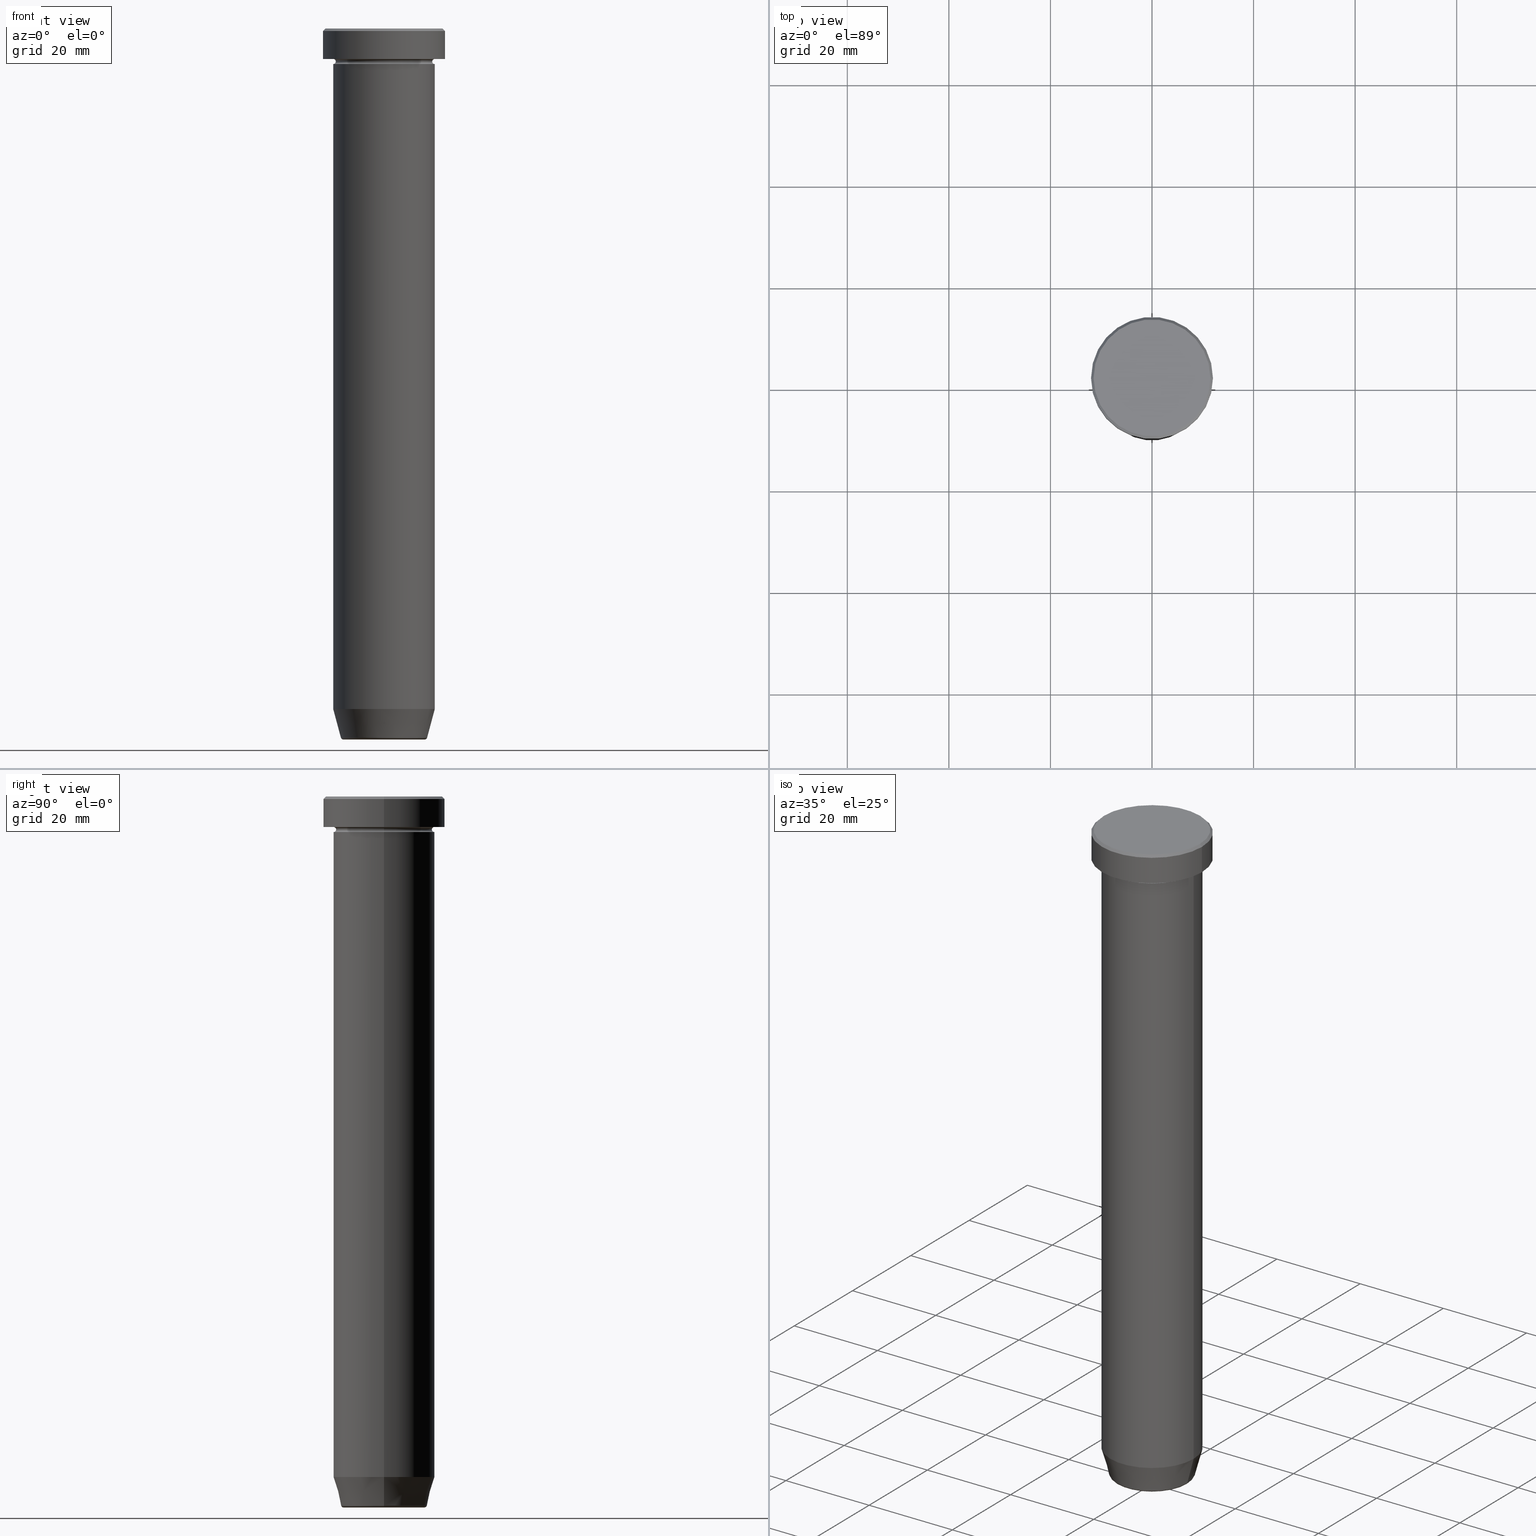
[diagram: canonical four-view strip — front | top / right | iso, engineering-drawing reading convention]
A machine part, canonical four-view strip (front | top / right | iso — engineering-drawing reading convention). The complete STEP part file that produces these views, byte-faithful:
ISO-10303-21;
HEADER;
FILE_DESCRIPTION (( 'STEP AP203' ),
    '1' );
FILE_NAME ('e3a0.STEP',
    '2024-01-02T20:48:16',
    ( '' ),
    ( '' ),
    'SwSTEP 2.0',
    'SolidWorks 2019',
    '' );
FILE_SCHEMA (( 'CONFIG_CONTROL_DESIGN' ));
ENDSEC;

DATA;
#1 = AXIS2_PLACEMENT_3D ( 'NONE', #4, #143, #133 ) ;
#2 = FACE_OUTER_BOUND ( 'NONE', #188, .T. ) ;
#3 = LINE ( 'NONE', #180, #43 ) ;
#4 = CARTESIAN_POINT ( 'NONE',  ( 0.000000000000000000, 0.000000000000000000, -139.6294095225512990 ) ) ;
#5 = ADVANCED_FACE ( 'NONE', ( #566 ), #194, .T. ) ;
#6 = TOROIDAL_SURFACE ( 'NONE', #167, 8.008641351423783306, 0.5000000000000000000 ) ;
#7 = ADVANCED_BREP_SHAPE_REPRESENTATION ( 'e3a0', ( #510, #296, #103 ), #229 ) ;
#8 = CIRCLE ( 'NONE', #472, 0.5000000000000004441 ) ;
#9 = TOROIDAL_SURFACE ( 'NONE', #569, 10.00000000000000000, 0.5000000000000000000 ) ;
#10 = ORIENTED_EDGE ( 'NONE', *, *, #491, .F. ) ;
#11 = FACE_OUTER_BOUND ( 'NONE', #370, .T. ) ;
#12 = ADVANCED_FACE ( 'NONE', ( #529 ), #6, .T. ) ;
#13 = VERTEX_POINT ( 'NONE', #433 ) ;
#14 = APPROVAL ( #59, 'NEUR�EN�' ) ;
#15 = VECTOR ( 'NONE', #323, 1000.000000000000000 ) ;
#16 = LOCAL_TIME ( 21, 48, 16.00000000000000000, #146 ) ;
#17 = PERSON_AND_ORGANIZATION ( #313, #94 ) ;
#18 = ORIENTED_EDGE ( 'NONE', *, *, #519, .T. ) ;
#19 = COORDINATED_UNIVERSAL_TIME_OFFSET ( 1, 0, .AHEAD. ) ;
#20 = CARTESIAN_POINT ( 'NONE',  ( -12.00000000000000000, 1.469576158976823947E-15, -0.5000000000000056621 ) ) ;
#21 = ORIENTED_EDGE ( 'NONE', *, *, #411, .T. ) ;
#22 = FACE_OUTER_BOUND ( 'NONE', #216, .T. ) ;
#23 = ADVANCED_FACE ( 'NONE', ( #544 ), #392, .T. ) ;
#24 = AXIS2_PLACEMENT_3D ( 'NONE', #222, #173, #123 ) ;
#25 = AXIS2_PLACEMENT_3D ( 'NONE', #218, #354, #492 ) ;
#26 = VERTEX_POINT ( 'NONE', #547 ) ;
#27 = ORIENTED_EDGE ( 'NONE', *, *, #364, .T. ) ;
#28 = LOCAL_TIME ( 21, 48, 16.00000000000000000, #387 ) ;
#29 = PLANE ( 'NONE',  #119 ) ;
#30 = CARTESIAN_POINT ( 'NONE',  ( 0.000000000000000000, 0.000000000000000000, -140.0000000000000000 ) ) ;
#31 = DIRECTION ( 'NONE',  ( 1.000000000000000000, 0.000000000000000000, 0.000000000000000000 ) ) ;
#32 = EDGE_CURVE ( 'NONE', #115, #508, #505, .T. ) ;
#33 = DIRECTION ( 'NONE',  ( 0.000000000000000000, 0.000000000000000000, -1.000000000000000000 ) ) ;
#34 = AXIS2_PLACEMENT_3D ( 'NONE', #30, #35, #156 ) ;
#35 = DIRECTION ( 'NONE',  ( 0.000000000000000000, 0.000000000000000000, -1.000000000000000000 ) ) ;
#36 = DIRECTION ( 'NONE',  ( 1.000000000000000000, 0.000000000000000000, 0.000000000000000000 ) ) ;
#37 = APPROVAL_PERSON_ORGANIZATION ( #288, #14, #396 ) ;
#38 = DIRECTION ( 'NONE',  ( 0.000000000000000000, 0.000000000000000000, -1.000000000000000000 ) ) ;
#39 = ADVANCED_FACE ( 'NONE', ( #214 ), #479, .T. ) ;
#40 = CARTESIAN_POINT ( 'NONE',  ( 11.49999999999999467, 1.408343819019455584E-15, 0.000000000000000000 ) ) ;
#41 = AXIS2_PLACEMENT_3D ( 'NONE', #152, #332, #469 ) ;
#42 = CARTESIAN_POINT ( 'NONE',  ( 0.000000000000000000, 0.000000000000000000, -139.6294095225512990 ) ) ;
#43 = VECTOR ( 'NONE', #357, 1000.000000000000114 ) ;
#44 = ORIENTED_EDGE ( 'NONE', *, *, #464, .T. ) ;
#45 = ADVANCED_FACE ( 'NONE', ( #219 ), #404, .T. ) ;
#46 = DIRECTION ( 'NONE',  ( 0.000000000000000000, 0.000000000000000000, 1.000000000000000000 ) ) ;
#47 = CIRCLE ( 'NONE', #24, 0.5000000000000004441 ) ;
#48 = EDGE_LOOP ( 'NONE', ( #477, #412 ) ) ;
#49 = CIRCLE ( 'NONE', #329, 0.5000000000000004441 ) ;
#50 = EDGE_CURVE ( 'NONE', #320, #52, #177, .T. ) ;
#51 = CARTESIAN_POINT ( 'NONE',  ( 0.000000000000000000, 0.000000000000000000, 0.000000000000000000 ) ) ;
#52 = VERTEX_POINT ( 'NONE', #254 ) ;
#53 = DIRECTION ( 'NONE',  ( -0.000000000000000000, -0.000000000000000000, 1.000000000000000000 ) ) ;
#54 = APPROVAL_ROLE ( '' ) ;
#55 = AXIS2_PLACEMENT_3D ( 'NONE', #305, #494, #33 ) ;
#56 = FACE_OUTER_BOUND ( 'NONE', #498, .T. ) ;
#57 = EDGE_LOOP ( 'NONE', ( #546, #429, #410, #413 ) ) ;
#58 = VECTOR ( 'NONE', #315, 1000.000000000000000 ) ;
#59 = APPROVAL_STATUS ( 'not_yet_approved' ) ;
#60 = CC_DESIGN_PERSON_AND_ORGANIZATION_ASSIGNMENT ( #416, #100, ( #104 ) ) ;
#61 = FACE_OUTER_BOUND ( 'NONE', #447, .T. ) ;
#62 = FACE_OUTER_BOUND ( 'NONE', #241, .T. ) ;
#63 = APPROVAL_DATE_TIME ( #576, #238 ) ;
#64 = LINE ( 'NONE', #434, #79 ) ;
#65 = ORIENTED_EDGE ( 'NONE', *, *, #243, .T. ) ;
#66 = DIRECTION ( 'NONE',  ( -0.000000000000000000, -0.000000000000000000, 1.000000000000000000 ) ) ;
#67 = CARTESIAN_POINT ( 'NONE',  ( -10.00000000000000000, 1.224646799147353256E-15, -30.00000000000000000 ) ) ;
#68 = CARTESIAN_POINT ( 'NONE',  ( 0.000000000000000000, 0.000000000000000000, -0.5000000000000056621 ) ) ;
#69 = AXIS2_PLACEMENT_3D ( 'NONE', #306, #537, #586 ) ;
#70 = EDGE_CURVE ( 'NONE', #26, #389, #244, .T. ) ;
#71 = COORDINATED_UNIVERSAL_TIME_OFFSET ( 1, 0, .AHEAD. ) ;
#72 = ORIENTED_EDGE ( 'NONE', *, *, #147, .T. ) ;
#73 = DIRECTION ( 'NONE',  ( -1.000000000000000000, 0.000000000000000000, 0.000000000000000000 ) ) ;
#74 = ORIENTED_EDGE ( 'NONE', *, *, #304, .T. ) ;
#75 = CARTESIAN_POINT ( 'NONE',  ( -8.491604264568307414, 1.132284198685156387E-15, -139.6294095225512990 ) ) ;
#76 = PLANE ( 'NONE',  #438 ) ;
#77 = AXIS2_PLACEMENT_3D ( 'NONE', #148, #531, #355 ) ;
#78 = CARTESIAN_POINT ( 'NONE',  ( 0.000000000000000000, 10.00000000000000000, -30.00000000000000000 ) ) ;
#79 = VECTOR ( 'NONE', #113, 1000.000000000000000 ) ;
#80 = LINE ( 'NONE', #40, #247 ) ;
#81 = CARTESIAN_POINT ( 'NONE',  ( 0.000000000000000000, 0.000000000000000000, 0.000000000000000000 ) ) ;
#82 = EDGE_CURVE ( 'NONE', #474, #391, #445, .T. ) ;
#83 = EDGE_LOOP ( 'NONE', ( #426, #157 ) ) ;
#84 = ORIENTED_EDGE ( 'NONE', *, *, #174, .F. ) ;
#85 = CARTESIAN_POINT ( 'NONE',  ( 9.999999999999998224, 0.000000000000000000, 0.000000000000000000 ) ) ;
#86 = ORIENTED_EDGE ( 'NONE', *, *, #397, .T. ) ;
#87 = DIRECTION ( 'NONE',  ( 0.2588190451025209060, 0.000000000000000000, 0.9659258262890682012 ) ) ;
#88 = APPLICATION_CONTEXT ( 'configuration controlled 3d designs of mechanical parts and assemblies' ) ;
#89 = EDGE_CURVE ( 'NONE', #92, #502, #493, .T. ) ;
#90 = ORIENTED_EDGE ( 'NONE', *, *, #32, .T. ) ;
#91 = CIRCLE ( 'NONE', #155, 12.00000000000000000 ) ;
#92 = VERTEX_POINT ( 'NONE', #109 ) ;
#93 = LINE ( 'NONE', #97, #58 ) ;
#94 = ORGANIZATION ( 'NEUR�EN�', 'NEUR�EN�', '' ) ;
#95 = SHAPE_DEFINITION_REPRESENTATION ( #126, #7 ) ;
#96 = FACE_OUTER_BOUND ( 'NONE', #520, .T. ) ;
#97 = CARTESIAN_POINT ( 'NONE',  ( 12.00000000000000000, 0.000000000000000000, 0.000000000000000000 ) ) ;
#98 = DIRECTION ( 'NONE',  ( -0.000000000000000000, -0.000000000000000000, 1.000000000000000000 ) ) ;
#99 = ORIENTED_EDGE ( 'NONE', *, *, #581, .F. ) ;
#100 = PERSON_AND_ORGANIZATION_ROLE ( 'design_owner' ) ;
#101 = DATE_AND_TIME ( #326, #16 ) ;
#102 = CIRCLE ( 'NONE', #170, 9.500000000000000000 ) ;
#103 = AXIS2_PLACEMENT_3D ( 'NONE', #552, #46, #213 ) ;
#104 = PRODUCT ( 'e3a0', 'e3a0', '', ( #523 ) ) ;
#105 = AXIS2_PLACEMENT_3D ( 'NONE', #208, #303, #484 ) ;
#106 = ORIENTED_EDGE ( 'NONE', *, *, #470, .T. ) ;
#107 = ADVANCED_FACE ( 'NONE', ( #398 ), #538, .T. ) ;
#108 = ORIENTED_EDGE ( 'NONE', *, *, #217, .F. ) ;
#109 = CARTESIAN_POINT ( 'NONE',  ( -10.00000000000000000, 1.224646799147353256E-15, -30.00000000000000000 ) ) ;
#110 = SECURITY_CLASSIFICATION ( '', '', #111 ) ;
#111 = SECURITY_CLASSIFICATION_LEVEL ( 'unclassified' ) ;
#112 = DIRECTION ( 'NONE',  ( -1.000000000000000000, 1.224646799147353454E-16, 0.000000000000000000 ) ) ;
#113 = DIRECTION ( 'NONE',  ( -0.000000000000000000, -0.000000000000000000, 1.000000000000000000 ) ) ;
#114 = ADVANCED_FACE ( 'NONE', ( #61 ), #548, .T. ) ;
#115 = VERTEX_POINT ( 'NONE', #536 ) ;
#116 = ORIENTED_EDGE ( 'NONE', *, *, #322, .F. ) ;
#117 = CARTESIAN_POINT ( 'NONE',  ( 0.000000000000000000, 0.000000000000000000, 0.000000000000000000 ) ) ;
#118 = CC_DESIGN_PERSON_AND_ORGANIZATION_ASSIGNMENT ( #590, #346, ( #110 ) ) ;
#119 = AXIS2_PLACEMENT_3D ( 'NONE', #583, #352, #36 ) ;
#120 = PERSON_AND_ORGANIZATION_ROLE ( 'creator' ) ;
#121 = ORIENTED_EDGE ( 'NONE', *, *, #405, .T. ) ;
#122 = CARTESIAN_POINT ( 'NONE',  ( 0.000000000000000000, 0.000000000000000000, 0.000000000000000000 ) ) ;
#123 = DIRECTION ( 'NONE',  ( -1.000000000000000000, 1.224646799147353454E-16, 0.000000000000000000 ) ) ;
#124 = ORIENTED_EDGE ( 'NONE', *, *, #70, .F. ) ;
#125 = DIRECTION ( 'NONE',  ( 1.000000000000000000, 0.000000000000000000, 0.000000000000000000 ) ) ;
#126 = PRODUCT_DEFINITION_SHAPE ( 'NONE', 'NONE',  #339 ) ;
#127 = ORIENTED_EDGE ( 'NONE', *, *, #345, .F. ) ;
#128 = EDGE_CURVE ( 'NONE', #142, #458, #591, .T. ) ;
#129 = VECTOR ( 'NONE', #195, 1000.000000000000000 ) ;
#130 =( LENGTH_UNIT ( ) NAMED_UNIT ( * ) SI_UNIT ( .MILLI., .METRE. ) );
#131 = DIRECTION ( 'NONE',  ( 1.000000000000000000, 0.000000000000000000, 0.000000000000000000 ) ) ;
#132 = APPLICATION_CONTEXT ( 'configuration controlled 3d designs of mechanical parts and assemblies' ) ;
#133 = DIRECTION ( 'NONE',  ( -1.000000000000000000, 0.000000000000000000, 0.000000000000000000 ) ) ;
#134 = DIRECTION ( 'NONE',  ( 1.000000000000000000, 0.000000000000000000, 0.000000000000000000 ) ) ;
#135 = EDGE_CURVE ( 'NONE', #168, #26, #328, .T. ) ;
#136 = APPROVAL_DATE_TIME ( #504, #376 ) ;
#137 = ORIENTED_EDGE ( 'NONE', *, *, #491, .T. ) ;
#138 = CARTESIAN_POINT ( 'NONE',  ( 8.392304845413260495, 0.000000000000000000, -140.0000000000000000 ) ) ;
#139 = AXIS2_PLACEMENT_3D ( 'NONE', #453, #66, #250 ) ;
#140 = TOROIDAL_SURFACE ( 'NONE', #403, 8.008641351423783306, 0.5000000000000000000 ) ;
#141 = APPROVAL_PERSON_ORGANIZATION ( #584, #376, #54 ) ;
#142 = VERTEX_POINT ( 'NONE', #598 ) ;
#143 = DIRECTION ( 'NONE',  ( -0.000000000000000000, -0.000000000000000000, 1.000000000000000000 ) ) ;
#144 = ORIENTED_EDGE ( 'NONE', *, *, #89, .F. ) ;
#145 = DIRECTION ( 'NONE',  ( -0.000000000000000000, -0.000000000000000000, 1.000000000000000000 ) ) ;
#146 = COORDINATED_UNIVERSAL_TIME_OFFSET ( 1, 0, .AHEAD. ) ;
#147 = EDGE_CURVE ( 'NONE', #474, #297, #47, .T. ) ;
#148 = CARTESIAN_POINT ( 'NONE',  ( 0.000000000000000000, 0.000000000000000000, 0.000000000000000000 ) ) ;
#149 = AXIS2_PLACEMENT_3D ( 'NONE', #564, #466, #317 ) ;
#150 = AXIS2_PLACEMENT_3D ( 'NONE', #175, #310, #501 ) ;
#151 = ADVANCED_FACE ( 'NONE', ( #160 ), #585, .T. ) ;
#152 = CARTESIAN_POINT ( 'NONE',  ( 0.000000000000000000, 0.000000000000000000, -6.499999999999999112 ) ) ;
#153 = CLOSED_SHELL ( 'NONE', ( #12, #534, #285, #158, #107, #423, #209, #263 ) ) ;
#154 = ORIENTED_EDGE ( 'NONE', *, *, #279, .F. ) ;
#155 = AXIS2_PLACEMENT_3D ( 'NONE', #488, #38, #31 ) ;
#156 = DIRECTION ( 'NONE',  ( 1.000000000000000000, 0.000000000000000000, 0.000000000000000000 ) ) ;
#157 = ORIENTED_EDGE ( 'NONE', *, *, #279, .T. ) ;
#158 = ADVANCED_FACE ( 'NONE', ( #347 ), #539, .F. ) ;
#159 = APPROVAL_STATUS ( 'not_yet_approved' ) ;
#160 = FACE_OUTER_BOUND ( 'NONE', #542, .T. ) ;
#161 = DIRECTION ( 'NONE',  ( 0.000000000000000000, 0.000000000000000000, -1.000000000000000000 ) ) ;
#162 = ORIENTED_EDGE ( 'NONE', *, *, #243, .F. ) ;
#163 = FACE_BOUND ( 'NONE', #444, .T. ) ;
#164 = PLANE ( 'NONE',  #366 ) ;
#165 = DIRECTION ( 'NONE',  ( 0.000000000000000000, 0.000000000000000000, -1.000000000000000000 ) ) ;
#166 = PERSON_AND_ORGANIZATION ( #313, #94 ) ;
#167 = AXIS2_PLACEMENT_3D ( 'NONE', #567, #468, #331 ) ;
#168 = VERTEX_POINT ( 'NONE', #487 ) ;
#169 = ORIENTED_EDGE ( 'NONE', *, *, #345, .T. ) ;
#170 = AXIS2_PLACEMENT_3D ( 'NONE', #262, #388, #294 ) ;
#171 = CC_DESIGN_APPROVAL ( #238, ( #339 ) ) ;
#172 = DIRECTION ( 'NONE',  ( 0.000000000000000000, 0.000000000000000000, -1.000000000000000000 ) ) ;
#173 = DIRECTION ( 'NONE',  ( 1.224646799147353207E-16, 1.000000000000000000, 0.000000000000000000 ) ) ;
#174 = EDGE_CURVE ( 'NONE', #13, #563, #186, .T. ) ;
#175 = CARTESIAN_POINT ( 'NONE',  ( 0.000000000000000000, 0.000000000000000000, -6.999999999999999112 ) ) ;
#176 = CC_DESIGN_DATE_AND_TIME_ASSIGNMENT ( #249, #207, ( #110 ) ) ;
#177 = CIRCLE ( 'NONE', #401, 10.00000000000000000 ) ;
#178 = ORIENTED_EDGE ( 'NONE', *, *, #135, .T. ) ;
#179 = AXIS2_PLACEMENT_3D ( 'NONE', #573, #440, #205 ) ;
#180 = CARTESIAN_POINT ( 'NONE',  ( -11.49999999999999467, 0.000000000000000000, 0.000000000000000000 ) ) ;
#181 = VERTEX_POINT ( 'NONE', #570 ) ;
#182 = ADVANCED_FACE ( 'NONE', ( #427 ), #526, .F. ) ;
#183 = CARTESIAN_POINT ( 'NONE',  ( -10.00000000000000000, 0.000000000000000000, -6.500000000000000888 ) ) ;
#184 = DIRECTION ( 'NONE',  ( 1.000000000000000000, 0.000000000000000000, 0.000000000000000000 ) ) ;
#185 = ORIENTED_EDGE ( 'NONE', *, *, #327, .T. ) ;
#186 = CIRCLE ( 'NONE', #139, 10.00000000000000000 ) ;
#187 = CARTESIAN_POINT ( 'NONE',  ( 10.00000000000000000, 1.224646799147353256E-15, -6.500000000000000888 ) ) ;
#188 = EDGE_LOOP ( 'NONE', ( #318, #325, #185, #86 ) ) ;
#189 = DIRECTION ( 'NONE',  ( 1.000000000000000000, 0.000000000000000000, 0.000000000000000000 ) ) ;
#190 = VECTOR ( 'NONE', #414, 1000.000000000000000 ) ;
#191 = ADVANCED_FACE ( 'NONE', ( #22 ), #9, .F. ) ;
#192 = CALENDAR_DATE ( 2024, 2, 1 ) ;
#193 = CC_DESIGN_DATE_AND_TIME_ASSIGNMENT ( #101, #251, ( #339 ) ) ;
#194 = CYLINDRICAL_SURFACE ( 'NONE', #471, 10.00000000000000000 ) ;
#195 = DIRECTION ( 'NONE',  ( -0.000000000000000000, -0.000000000000000000, 1.000000000000000000 ) ) ;
#196 = DIRECTION ( 'NONE',  ( 1.000000000000000000, 0.000000000000000000, 0.000000000000000000 ) ) ;
#197 = AXIS2_PLACEMENT_3D ( 'NONE', #431, #204, #580 ) ;
#198 = EDGE_CURVE ( 'NONE', #181, #168, #321, .T. ) ;
#199 = ORIENTED_EDGE ( 'NONE', *, *, #436, .F. ) ;
#200 = ORIENTED_EDGE ( 'NONE', *, *, #568, .T. ) ;
#201 = ORIENTED_EDGE ( 'NONE', *, *, #89, .T. ) ;
#202 = ORIENTED_EDGE ( 'NONE', *, *, #293, .T. ) ;
#203 = ORIENTED_EDGE ( 'NONE', *, *, #32, .F. ) ;
#204 = DIRECTION ( 'NONE',  ( 0.000000000000000000, 0.000000000000000000, -1.000000000000000000 ) ) ;
#205 = DIRECTION ( 'NONE',  ( 1.000000000000000000, 0.000000000000000000, 0.000000000000000000 ) ) ;
#206 = CIRCLE ( 'NONE', #516, 0.5000000000000004441 ) ;
#207 = DATE_TIME_ROLE ( 'classification_date' ) ;
#208 = CARTESIAN_POINT ( 'NONE',  ( 0.000000000000000000, -1.734723475976807094E-15, -30.00000000000000000 ) ) ;
#209 = ADVANCED_FACE ( 'NONE', ( #395 ), #29, .F. ) ;
#210 = ORIENTED_EDGE ( 'NONE', *, *, #386, .T. ) ;
#211 = DIRECTION ( 'NONE',  ( -0.000000000000000000, -0.000000000000000000, 1.000000000000000000 ) ) ;
#212 = ORIENTED_EDGE ( 'NONE', *, *, #397, .F. ) ;
#213 = DIRECTION ( 'NONE',  ( 1.000000000000000000, 0.000000000000000000, 0.000000000000000000 ) ) ;
#214 = FACE_OUTER_BOUND ( 'NONE', #57, .T. ) ;
#215 = AXIS2_PLACEMENT_3D ( 'NONE', #402, #295, #448 ) ;
#216 = EDGE_LOOP ( 'NONE', ( #378, #358, #553, #231 ) ) ;
#217 = EDGE_CURVE ( 'NONE', #458, #594, #558, .T. ) ;
#218 = CARTESIAN_POINT ( 'NONE',  ( 0.000000000000000000, 0.000000000000000000, -140.0000000000000000 ) ) ;
#219 = FACE_OUTER_BOUND ( 'NONE', #350, .T. ) ;
#220 = CARTESIAN_POINT ( 'NONE',  ( 0.000000000000000000, 12.00000000000000000, -6.000000000000000000 ) ) ;
#221 = EDGE_LOOP ( 'NONE', ( #422, #476 ) ) ;
#222 = CARTESIAN_POINT ( 'NONE',  ( -8.008641351423783306, 9.807756996540268265E-16, -139.5000000000000000 ) ) ;
#223 = CARTESIAN_POINT ( 'NONE',  ( 12.00000000000000000, 0.000000000000000000, -0.5000000000000056621 ) ) ;
#224 = ADVANCED_FACE ( 'NONE', ( #163, #344 ), #76, .T. ) ;
#225 = FACE_OUTER_BOUND ( 'NONE', #333, .T. ) ;
#226 = CIRCLE ( 'NONE', #149, 11.49999999999999467 ) ;
#227 = DIRECTION ( 'NONE',  ( 1.000000000000000000, 0.000000000000000000, 0.000000000000000000 ) ) ;
#228 = CC_DESIGN_PERSON_AND_ORGANIZATION_ASSIGNMENT ( #166, #120, ( #561 ) ) ;
#229 =( GEOMETRIC_REPRESENTATION_CONTEXT ( 3 ) GLOBAL_UNCERTAINTY_ASSIGNED_CONTEXT ( ( #518 ) ) GLOBAL_UNIT_ASSIGNED_CONTEXT ( ( #130, #274, #230 ) ) REPRESENTATION_CONTEXT ( 'NONE', 'WORKASPACE' ) );
#230 =( NAMED_UNIT ( * ) SI_UNIT ( $, .STERADIAN. ) SOLID_ANGLE_UNIT ( ) );
#231 = ORIENTED_EDGE ( 'NONE', *, *, #381, .F. ) ;
#232 = CARTESIAN_POINT ( 'NONE',  ( 0.000000000000000000, 0.000000000000000000, -140.0000000000000000 ) ) ;
#233 = DIRECTION ( 'NONE',  ( -0.000000000000000000, -0.000000000000000000, 1.000000000000000000 ) ) ;
#234 = CARTESIAN_POINT ( 'NONE',  ( 0.000000000000000000, 0.000000000000000000, -5.999999999999999112 ) ) ;
#235 = DIRECTION ( 'NONE',  ( 0.000000000000000000, 0.000000000000000000, -1.000000000000000000 ) ) ;
#236 = AXIS2_PLACEMENT_3D ( 'NONE', #334, #211, #530 ) ;
#237 = CARTESIAN_POINT ( 'NONE',  ( 0.000000000000000000, 0.000000000000000000, -6.000000000000000000 ) ) ;
#238 = APPROVAL ( #424, 'NEUR�EN�' ) ;
#239 = AXIS2_PLACEMENT_3D ( 'NONE', #232, #512, #134 ) ;
#240 = CARTESIAN_POINT ( 'NONE',  ( 10.00000000000000000, 0.000000000000000000, -30.00000000000000000 ) ) ;
#241 = EDGE_LOOP ( 'NONE', ( #266, #44, #559, #483 ) ) ;
#242 = DIRECTION ( 'NONE',  ( -1.000000000000000000, 0.000000000000000000, 0.000000000000000000 ) ) ;
#243 = EDGE_CURVE ( 'NONE', #297, #508, #319, .T. ) ;
#244 = CIRCLE ( 'NONE', #287, 10.00000000000000000 ) ;
#245 = EDGE_LOOP ( 'NONE', ( #363, #406, #124, #343 ) ) ;
#246 = APPROVAL_ROLE ( '' ) ;
#247 = VECTOR ( 'NONE', #521, 1000.000000000000114 ) ;
#248 = APPROVAL_DATE_TIME ( #592, #14 ) ;
#249 = DATE_AND_TIME ( #522, #452 ) ;
#250 = DIRECTION ( 'NONE',  ( 1.000000000000000000, 0.000000000000000000, 0.000000000000000000 ) ) ;
#251 = DATE_TIME_ROLE ( 'creation_date' ) ;
#252 = CLOSED_SHELL ( 'NONE', ( #23, #191, #182, #5, #39, #151, #428, #372, #224, #45, #562, #316, #114 ) ) ;
#253 = AXIS2_PLACEMENT_3D ( 'NONE', #237, #419, #554 ) ;
#254 = CARTESIAN_POINT ( 'NONE',  ( -10.00000000000000000, 0.000000000000000000, -6.000000000000000000 ) ) ;
#255 = CALENDAR_DATE ( 2024, 2, 1 ) ;
#256 = EDGE_LOOP ( 'NONE', ( #449, #201 ) ) ;
#257 = VERTEX_POINT ( 'NONE', #407 ) ;
#258 = DIRECTION ( 'NONE',  ( -1.000000000000000000, 0.000000000000000000, -0.000000000000000000 ) ) ;
#259 = DIRECTION ( 'NONE',  ( -1.000000000000000000, 0.000000000000000000, -0.000000000000000000 ) ) ;
#260 = DIRECTION ( 'NONE',  ( -0.000000000000000000, -0.000000000000000000, 1.000000000000000000 ) ) ;
#261 = DIRECTION ( 'NONE',  ( -0.000000000000000000, -0.000000000000000000, 1.000000000000000000 ) ) ;
#262 = CARTESIAN_POINT ( 'NONE',  ( 0.000000000000000000, 0.000000000000000000, -6.499999999999999112 ) ) ;
#263 = ADVANCED_FACE ( 'NONE', ( #96 ), #140, .T. ) ;
#264 = DIRECTION ( 'NONE',  ( -0.000000000000000000, -0.000000000000000000, 1.000000000000000000 ) ) ;
#265 = DIRECTION ( 'NONE',  ( 1.224646799147353207E-16, 1.000000000000000000, 0.000000000000000000 ) ) ;
#266 = ORIENTED_EDGE ( 'NONE', *, *, #550, .F. ) ;
#267 = VECTOR ( 'NONE', #87, 1000.000000000000000 ) ;
#268 = EDGE_CURVE ( 'NONE', #502, #92, #465, .T. ) ;
#269 = VERTEX_POINT ( 'NONE', #379 ) ;
#270 = PRODUCT_RELATED_PRODUCT_CATEGORY ( 'detail', '', ( #104 ) ) ;
#271 = CARTESIAN_POINT ( 'NONE',  ( 12.00000000000000000, 0.000000000000000000, -5.999999999999999112 ) ) ;
#272 = CARTESIAN_POINT ( 'NONE',  ( 0.000000000000000000, 0.000000000000000000, -5.999999999999999112 ) ) ;
#273 = CIRCLE ( 'NONE', #340, 0.5000000000000004441 ) ;
#274 =( NAMED_UNIT ( * ) PLANE_ANGLE_UNIT ( ) SI_UNIT ( $, .RADIAN. ) );
#275 = ORIENTED_EDGE ( 'NONE', *, *, #50, .T. ) ;
#276 = ORIENTED_EDGE ( 'NONE', *, *, #322, .T. ) ;
#277 = DIRECTION ( 'NONE',  ( -0.000000000000000000, -0.000000000000000000, 1.000000000000000000 ) ) ;
#278 = APPLICATION_PROTOCOL_DEFINITION ( 'international standard', 'config_control_design', 1994, #132 ) ;
#279 = EDGE_CURVE ( 'NONE', #269, #257, #383, .T. ) ;
#280 = ORIENTED_EDGE ( 'NONE', *, *, #364, .F. ) ;
#281 = CARTESIAN_POINT ( 'NONE',  ( 8.491604264568307414, 0.000000000000000000, -139.6294095225512990 ) ) ;
#282 = ORIENTED_EDGE ( 'NONE', *, *, #464, .F. ) ;
#283 = AXIS2_PLACEMENT_3D ( 'NONE', #497, #277, #359 ) ;
#284 = APPROVAL_PERSON_ORGANIZATION ( #17, #238, #246 ) ;
#285 = ADVANCED_FACE ( 'NONE', ( #56 ), #571, .T. ) ;
#286 = CALENDAR_DATE ( 2024, 2, 1 ) ;
#287 = AXIS2_PLACEMENT_3D ( 'NONE', #430, #443, #535 ) ;
#288 = PERSON_AND_ORGANIZATION ( #313, #94 ) ;
#289 = CIRCLE ( 'NONE', #283, 10.00000000000000000 ) ;
#290 = EDGE_LOOP ( 'NONE', ( #507, #74, #417, #461 ) ) ;
#291 = DIRECTION ( 'NONE',  ( -0.000000000000000000, -0.000000000000000000, 1.000000000000000000 ) ) ;
#292 = EDGE_LOOP ( 'NONE', ( #341, #202, #27, #144 ) ) ;
#293 = EDGE_CURVE ( 'NONE', #508, #115, #480, .T. ) ;
#294 = DIRECTION ( 'NONE',  ( 1.000000000000000000, 0.000000000000000000, 0.000000000000000000 ) ) ;
#295 = DIRECTION ( 'NONE',  ( -0.000000000000000000, -0.000000000000000000, 1.000000000000000000 ) ) ;
#296 = MANIFOLD_SOLID_BREP ( 'Zaoblit4', #153 ) ;
#297 = VERTEX_POINT ( 'NONE', #75 ) ;
#298 = DIRECTION ( 'NONE',  ( -0.000000000000000000, -0.000000000000000000, 1.000000000000000000 ) ) ;
#299 = DIRECTION ( 'NONE',  ( -0.000000000000000000, -0.000000000000000000, 1.000000000000000000 ) ) ;
#300 = ORIENTED_EDGE ( 'NONE', *, *, #304, .F. ) ;
#301 = DIRECTION ( 'NONE',  ( 0.000000000000000000, 0.000000000000000000, -1.000000000000000000 ) ) ;
#302 = CIRCLE ( 'NONE', #597, 12.00000000000000000 ) ;
#303 = DIRECTION ( 'NONE',  ( 0.000000000000000000, 0.000000000000000000, -1.000000000000000000 ) ) ;
#304 = EDGE_CURVE ( 'NONE', #181, #389, #8, .T. ) ;
#305 = CARTESIAN_POINT ( 'NONE',  ( 10.00000000000000000, 0.000000000000000000, -6.499999999999999112 ) ) ;
#306 = CARTESIAN_POINT ( 'NONE',  ( 0.000000000000000000, 0.000000000000000000, -134.0000000000000000 ) ) ;
#307 = CARTESIAN_POINT ( 'NONE',  ( 0.000000000000000000, 0.000000000000000000, -134.0000000000000000 ) ) ;
#308 = ORIENTED_EDGE ( 'NONE', *, *, #543, .F. ) ;
#309 = DIRECTION ( 'NONE',  ( 0.000000000000000000, 0.000000000000000000, -1.000000000000000000 ) ) ;
#310 = DIRECTION ( 'NONE',  ( -0.000000000000000000, -0.000000000000000000, 1.000000000000000000 ) ) ;
#311 = DIRECTION ( 'NONE',  ( 1.000000000000000000, 0.000000000000000000, 0.000000000000000000 ) ) ;
#312 = CARTESIAN_POINT ( 'NONE',  ( -10.00000000000000000, 1.224646799147353256E-15, -6.999999999999999112 ) ) ;
#313 = PERSON ( 'NEUR�EN�', 'NEUR�EN�', 'NEUR�EN�', ('NEUR�EN�'), ('NEUR�EN�'), ('NEUR�EN�') ) ;
#314 = AXIS2_PLACEMENT_3D ( 'NONE', #418, #365, #189 ) ;
#315 = DIRECTION ( 'NONE',  ( -0.000000000000000000, -0.000000000000000000, 1.000000000000000000 ) ) ;
#316 = ADVANCED_FACE ( 'NONE', ( #62 ), #393, .F. ) ;
#317 = DIRECTION ( 'NONE',  ( 1.000000000000000000, 0.000000000000000000, 0.000000000000000000 ) ) ;
#318 = ORIENTED_EDGE ( 'NONE', *, *, #128, .F. ) ;
#319 = LINE ( 'NONE', #509, #15 ) ;
#320 = VERTEX_POINT ( 'NONE', #478 ) ;
#321 = CIRCLE ( 'NONE', #179, 9.500000000000000000 ) ;
#322 = EDGE_CURVE ( 'NONE', #533, #115, #408, .T. ) ;
#323 = DIRECTION ( 'NONE',  ( -0.2588190451025209060, 3.169619151431766790E-17, 0.9659258262890682012 ) ) ;
#324 = CC_DESIGN_APPROVAL ( #14, ( #561 ) ) ;
#325 = ORIENTED_EDGE ( 'NONE', *, *, #515, .T. ) ;
#326 = CALENDAR_DATE ( 2024, 2, 1 ) ;
#327 = EDGE_CURVE ( 'NONE', #506, #594, #93, .T. ) ;
#328 = CIRCLE ( 'NONE', #55, 0.5000000000000004441 ) ;
#329 = AXIS2_PLACEMENT_3D ( 'NONE', #187, #375, #560 ) ;
#330 = TOROIDAL_SURFACE ( 'NONE', #582, 10.00000000000000000, 0.5000000000000000000 ) ;
#331 = DIRECTION ( 'NONE',  ( 1.000000000000000000, 0.000000000000000000, 0.000000000000000000 ) ) ;
#332 = DIRECTION ( 'NONE',  ( -0.000000000000000000, -0.000000000000000000, 1.000000000000000000 ) ) ;
#333 = EDGE_LOOP ( 'NONE', ( #300, #282, #178, #439 ) ) ;
#334 = CARTESIAN_POINT ( 'NONE',  ( 0.000000000000000000, 0.000000000000000000, -30.00000000000000000 ) ) ;
#335 = AXIS2_PLACEMENT_3D ( 'NONE', #307, #299, #593 ) ;
#336 = PERSON_AND_ORGANIZATION_ROLE ( 'design_supplier' ) ;
#337 = DIRECTION ( 'NONE',  ( 1.000000000000000000, 0.000000000000000000, 0.000000000000000000 ) ) ;
#338 = DIRECTION ( 'NONE',  ( 0.000000000000000000, -1.000000000000000000, 0.000000000000000000 ) ) ;
#339 = PRODUCT_DEFINITION ( 'NEZN�M�', '', #561, #456 ) ;
#340 = AXIS2_PLACEMENT_3D ( 'NONE', #183, #368, #235 ) ;
#341 = ORIENTED_EDGE ( 'NONE', *, *, #411, .F. ) ;
#342 = CIRCLE ( 'NONE', #377, 12.00000000000000000 ) ;
#343 = ORIENTED_EDGE ( 'NONE', *, *, #405, .F. ) ;
#344 = FACE_OUTER_BOUND ( 'NONE', #221, .T. ) ;
#345 = EDGE_CURVE ( 'NONE', #563, #13, #289, .T. ) ;
#346 = PERSON_AND_ORGANIZATION_ROLE ( 'classification_officer' ) ;
#347 = FACE_OUTER_BOUND ( 'NONE', #256, .T. ) ;
#348 = ORIENTED_EDGE ( 'NONE', *, *, #147, .F. ) ;
#349 = CIRCLE ( 'NONE', #540, 8.491604264568307414 ) ;
#350 = EDGE_LOOP ( 'NONE', ( #199, #169, #121, #99 ) ) ;
#351 = CARTESIAN_POINT ( 'NONE',  ( -12.00000000000000000, 1.469576158976823947E-15, 0.000000000000000000 ) ) ;
#352 = DIRECTION ( 'NONE',  ( 0.000000000000000000, -0.000000000000000000, 1.000000000000000000 ) ) ;
#353 = FACE_OUTER_BOUND ( 'NONE', #83, .T. ) ;
#354 = DIRECTION ( 'NONE',  ( -0.000000000000000000, -0.000000000000000000, 1.000000000000000000 ) ) ;
#355 = DIRECTION ( 'NONE',  ( -1.000000000000000000, 0.000000000000000000, 0.000000000000000000 ) ) ;
#356 = LINE ( 'NONE', #360, #129 ) ;
#357 = DIRECTION ( 'NONE',  ( -0.7071067811865474617, 0.000000000000000000, -0.7071067811865474617 ) ) ;
#358 = ORIENTED_EDGE ( 'NONE', *, *, #550, .T. ) ;
#359 = DIRECTION ( 'NONE',  ( 1.000000000000000000, 0.000000000000000000, 0.000000000000000000 ) ) ;
#360 = CARTESIAN_POINT ( 'NONE',  ( -9.999999999999998224, 1.224646799147353059E-15, 0.000000000000000000 ) ) ;
#361 = DIRECTION ( 'NONE',  ( 0.000000000000000000, 0.000000000000000000, -1.000000000000000000 ) ) ;
#362 = AXIS2_PLACEMENT_3D ( 'NONE', #78, #165, #259 ) ;
#363 = ORIENTED_EDGE ( 'NONE', *, *, #174, .T. ) ;
#364 = EDGE_CURVE ( 'NONE', #115, #502, #499, .T. ) ;
#365 = DIRECTION ( 'NONE',  ( -0.000000000000000000, -0.000000000000000000, 1.000000000000000000 ) ) ;
#366 = AXIS2_PLACEMENT_3D ( 'NONE', #122, #545, #475 ) ;
#367 = LOCAL_TIME ( 21, 48, 16.00000000000000000, #380 ) ;
#368 = DIRECTION ( 'NONE',  ( -0.000000000000000000, -1.000000000000000000, -0.000000000000000000 ) ) ;
#369 = DIRECTION ( 'NONE',  ( -0.000000000000000000, -0.000000000000000000, 1.000000000000000000 ) ) ;
#370 = EDGE_LOOP ( 'NONE', ( #394, #65, #203, #116 ) ) ;
#371 = CARTESIAN_POINT ( 'NONE',  ( -9.999999999999998224, 1.224646799147353059E-15, -134.0000000000000000 ) ) ;
#372 = ADVANCED_FACE ( 'NONE', ( #2 ), #459, .T. ) ;
#373 = CARTESIAN_POINT ( 'NONE',  ( -8.008641351423783306, 1.010348648938493172E-15, -140.0000000000000000 ) ) ;
#374 = DIRECTION ( 'NONE',  ( -0.000000000000000000, -0.000000000000000000, 1.000000000000000000 ) ) ;
#375 = DIRECTION ( 'NONE',  ( -1.224646799147353207E-16, 1.000000000000000000, 0.000000000000000000 ) ) ;
#376 = APPROVAL ( #159, 'NEUR�EN�' ) ;
#377 = AXIS2_PLACEMENT_3D ( 'NONE', #234, #467, #485 ) ;
#378 = ORIENTED_EDGE ( 'NONE', *, *, #198, .T. ) ;
#379 = CARTESIAN_POINT ( 'NONE',  ( 11.49999999999999467, 1.438959988998139766E-15, 0.000000000000000000 ) ) ;
#380 = COORDINATED_UNIVERSAL_TIME_OFFSET ( 1, 0, .AHEAD. ) ;
#381 = EDGE_CURVE ( 'NONE', #181, #52, #273, .T. ) ;
#382 = CARTESIAN_POINT ( 'NONE',  ( 0.000000000000000000, 0.000000000000000000, 0.000000000000000000 ) ) ;
#383 = CIRCLE ( 'NONE', #455, 11.49999999999999467 ) ;
#384 = DIRECTION ( 'NONE',  ( 1.000000000000000000, 0.000000000000000000, 0.000000000000000000 ) ) ;
#385 = CARTESIAN_POINT ( 'NONE',  ( 0.000000000000000000, 0.000000000000000000, 0.000000000000000000 ) ) ;
#386 = EDGE_CURVE ( 'NONE', #297, #533, #349, .T. ) ;
#387 = COORDINATED_UNIVERSAL_TIME_OFFSET ( 1, 0, .AHEAD. ) ;
#388 = DIRECTION ( 'NONE',  ( -0.000000000000000000, -0.000000000000000000, 1.000000000000000000 ) ) ;
#389 = VERTEX_POINT ( 'NONE', #312 ) ;
#390 = ORIENTED_EDGE ( 'NONE', *, *, #293, .F. ) ;
#391 = VERTEX_POINT ( 'NONE', #441 ) ;
#392 = CONICAL_SURFACE ( 'NONE', #556, 11.49999999999999467, 0.7853981633974482790 ) ;
#393 = TOROIDAL_SURFACE ( 'NONE', #197, 10.00000000000000000, 0.5000000000000000000 ) ;
#394 = ORIENTED_EDGE ( 'NONE', *, *, #543, .T. ) ;
#395 = FACE_OUTER_BOUND ( 'NONE', #48, .T. ) ;
#396 = APPROVAL_ROLE ( '' ) ;
#397 = EDGE_CURVE ( 'NONE', #594, #458, #91, .T. ) ;
#398 = FACE_OUTER_BOUND ( 'NONE', #292, .T. ) ;
#399 = LINE ( 'NONE', #446, #409 ) ;
#400 = DIRECTION ( 'NONE',  ( 0.000000000000000000, 0.000000000000000000, -1.000000000000000000 ) ) ;
#401 = AXIS2_PLACEMENT_3D ( 'NONE', #421, #264, #435 ) ;
#402 = CARTESIAN_POINT ( 'NONE',  ( 0.000000000000000000, 0.000000000000000000, 0.000000000000000000 ) ) ;
#403 = AXIS2_PLACEMENT_3D ( 'NONE', #460, #233, #131 ) ;
#404 = CYLINDRICAL_SURFACE ( 'NONE', #463, 10.00000000000000000 ) ;
#405 = EDGE_CURVE ( 'NONE', #13, #26, #399, .T. ) ;
#406 = ORIENTED_EDGE ( 'NONE', *, *, #436, .T. ) ;
#407 = CARTESIAN_POINT ( 'NONE',  ( -11.49999999999999467, 0.000000000000000000, 0.000000000000000000 ) ) ;
#408 = LINE ( 'NONE', #138, #267 ) ;
#409 = VECTOR ( 'NONE', #260, 1000.000000000000000 ) ;
#410 = ORIENTED_EDGE ( 'NONE', *, *, #217, .T. ) ;
#411 = EDGE_CURVE ( 'NONE', #508, #92, #356, .T. ) ;
#412 = ORIENTED_EDGE ( 'NONE', *, *, #82, .T. ) ;
#413 = ORIENTED_EDGE ( 'NONE', *, *, #327, .F. ) ;
#414 = DIRECTION ( 'NONE',  ( -0.000000000000000000, -0.000000000000000000, 1.000000000000000000 ) ) ;
#415 = CC_DESIGN_PERSON_AND_ORGANIZATION_ASSIGNMENT ( #575, #336, ( #561 ) ) ;
#416 = PERSON_AND_ORGANIZATION ( #313, #94 ) ;
#417 = ORIENTED_EDGE ( 'NONE', *, *, #581, .T. ) ;
#418 = CARTESIAN_POINT ( 'NONE',  ( 0.000000000000000000, 0.000000000000000000, -30.00000000000000000 ) ) ;
#419 = DIRECTION ( 'NONE',  ( -0.000000000000000000, -0.000000000000000000, 1.000000000000000000 ) ) ;
#420 = AXIS2_PLACEMENT_3D ( 'NONE', #454, #361, #227 ) ;
#421 = CARTESIAN_POINT ( 'NONE',  ( 0.000000000000000000, 0.000000000000000000, -6.000000000000000000 ) ) ;
#422 = ORIENTED_EDGE ( 'NONE', *, *, #451, .F. ) ;
#423 = ADVANCED_FACE ( 'NONE', ( #503 ), #511, .T. ) ;
#424 = APPROVAL_STATUS ( 'not_yet_approved' ) ;
#425 = AXIS2_PLACEMENT_3D ( 'NONE', #385, #261, #125 ) ;
#426 = ORIENTED_EDGE ( 'NONE', *, *, #500, .T. ) ;
#427 = FACE_OUTER_BOUND ( 'NONE', #290, .T. ) ;
#428 = ADVANCED_FACE ( 'NONE', ( #353 ), #164, .T. ) ;
#429 = ORIENTED_EDGE ( 'NONE', *, *, #128, .T. ) ;
#430 = CARTESIAN_POINT ( 'NONE',  ( 0.000000000000000000, 0.000000000000000000, -6.999999999999999112 ) ) ;
#431 = CARTESIAN_POINT ( 'NONE',  ( 0.000000000000000000, 0.000000000000000000, -6.500000000000000888 ) ) ;
#432 = PERSON_AND_ORGANIZATION ( #313, #94 ) ;
#433 = CARTESIAN_POINT ( 'NONE',  ( 10.00000000000000000, 0.000000000000000000, -30.00000000000000000 ) ) ;
#434 = CARTESIAN_POINT ( 'NONE',  ( -10.00000000000000000, 1.224646799147353256E-15, 0.000000000000000000 ) ) ;
#435 = DIRECTION ( 'NONE',  ( -1.000000000000000000, 0.000000000000000000, 0.000000000000000000 ) ) ;
#436 = EDGE_CURVE ( 'NONE', #563, #389, #64, .T. ) ;
#437 = CARTESIAN_POINT ( 'NONE',  ( 0.000000000000000000, 0.000000000000000000, 0.000000000000000000 ) ) ;
#438 = AXIS2_PLACEMENT_3D ( 'NONE', #220, #301, #258 ) ;
#439 = ORIENTED_EDGE ( 'NONE', *, *, #70, .T. ) ;
#440 = DIRECTION ( 'NONE',  ( -0.000000000000000000, -0.000000000000000000, 1.000000000000000000 ) ) ;
#441 = CARTESIAN_POINT ( 'NONE',  ( 8.008641351423783306, 0.000000000000000000, -140.0000000000000000 ) ) ;
#442 = CC_DESIGN_APPROVAL ( #376, ( #110 ) ) ;
#443 = DIRECTION ( 'NONE',  ( -0.000000000000000000, -0.000000000000000000, 1.000000000000000000 ) ) ;
#444 = EDGE_LOOP ( 'NONE', ( #18, #275 ) ) ;
#445 = CIRCLE ( 'NONE', #34, 8.008641351423783306 ) ;
#446 = CARTESIAN_POINT ( 'NONE',  ( 10.00000000000000000, 0.000000000000000000, 0.000000000000000000 ) ) ;
#447 = EDGE_LOOP ( 'NONE', ( #10, #588, #200, #212 ) ) ;
#448 = DIRECTION ( 'NONE',  ( 1.000000000000000000, 0.000000000000000000, 0.000000000000000000 ) ) ;
#449 = ORIENTED_EDGE ( 'NONE', *, *, #268, .T. ) ;
#450 = AXIS2_PLACEMENT_3D ( 'NONE', #81, #374, #557 ) ;
#451 = EDGE_CURVE ( 'NONE', #506, #142, #342, .T. ) ;
#452 = LOCAL_TIME ( 21, 48, 16.00000000000000000, #19 ) ;
#453 = CARTESIAN_POINT ( 'NONE',  ( 0.000000000000000000, 0.000000000000000000, -30.00000000000000000 ) ) ;
#454 = CARTESIAN_POINT ( 'NONE',  ( 0.000000000000000000, 0.000000000000000000, -140.0000000000000000 ) ) ;
#455 = AXIS2_PLACEMENT_3D ( 'NONE', #51, #145, #384 ) ;
#456 = DESIGN_CONTEXT ( 'detailed design', #88, 'design' ) ;
#457 = CC_DESIGN_PERSON_AND_ORGANIZATION_ASSIGNMENT ( #432, #565, ( #339 ) ) ;
#458 = VERTEX_POINT ( 'NONE', #20 ) ;
#459 = CYLINDRICAL_SURFACE ( 'NONE', #450, 12.00000000000000000 ) ;
#460 = CARTESIAN_POINT ( 'NONE',  ( 0.000000000000000000, 0.000000000000000000, -139.5000000000000000 ) ) ;
#461 = ORIENTED_EDGE ( 'NONE', *, *, #135, .F. ) ;
#462 = ORIENTED_EDGE ( 'NONE', *, *, #470, .F. ) ;
#463 = AXIS2_PLACEMENT_3D ( 'NONE', #437, #599, #311 ) ;
#464 = EDGE_CURVE ( 'NONE', #168, #181, #102, .T. ) ;
#465 = CIRCLE ( 'NONE', #314, 10.00000000000000000 ) ;
#466 = DIRECTION ( 'NONE',  ( -0.000000000000000000, -0.000000000000000000, 1.000000000000000000 ) ) ;
#467 = DIRECTION ( 'NONE',  ( -0.000000000000000000, -0.000000000000000000, 1.000000000000000000 ) ) ;
#468 = DIRECTION ( 'NONE',  ( -0.000000000000000000, -0.000000000000000000, 1.000000000000000000 ) ) ;
#469 = DIRECTION ( 'NONE',  ( 1.000000000000000000, 0.000000000000000000, 0.000000000000000000 ) ) ;
#470 = EDGE_CURVE ( 'NONE', #391, #533, #206, .T. ) ;
#471 = AXIS2_PLACEMENT_3D ( 'NONE', #382, #525, #196 ) ;
#472 = AXIS2_PLACEMENT_3D ( 'NONE', #489, #265, #112 ) ;
#473 = DIRECTION ( 'NONE',  ( 1.000000000000000000, 0.000000000000000000, 0.000000000000000000 ) ) ;
#474 = VERTEX_POINT ( 'NONE', #373 ) ;
#475 = DIRECTION ( 'NONE',  ( 1.000000000000000000, 0.000000000000000000, 0.000000000000000000 ) ) ;
#476 = ORIENTED_EDGE ( 'NONE', *, *, #515, .F. ) ;
#477 = ORIENTED_EDGE ( 'NONE', *, *, #596, .T. ) ;
#478 = CARTESIAN_POINT ( 'NONE',  ( 10.00000000000000000, 1.224646799147353256E-15, -6.000000000000000000 ) ) ;
#479 = CYLINDRICAL_SURFACE ( 'NONE', #215, 12.00000000000000000 ) ;
#480 = CIRCLE ( 'NONE', #69, 9.999999999999998224 ) ;
#481 = ORIENTED_EDGE ( 'NONE', *, *, #82, .F. ) ;
#482 = CIRCLE ( 'NONE', #420, 8.008641351423783306 ) ;
#483 = ORIENTED_EDGE ( 'NONE', *, *, #50, .F. ) ;
#484 = DIRECTION ( 'NONE',  ( -1.000000000000000000, 0.000000000000000000, -0.000000000000000000 ) ) ;
#485 = DIRECTION ( 'NONE',  ( 1.000000000000000000, 0.000000000000000000, 0.000000000000000000 ) ) ;
#486 = DIRECTION ( 'NONE',  ( -1.000000000000000000, 0.000000000000000000, 0.000000000000000000 ) ) ;
#487 = CARTESIAN_POINT ( 'NONE',  ( 9.500000000000000000, 0.000000000000000000, -6.499999999999999112 ) ) ;
#488 = CARTESIAN_POINT ( 'NONE',  ( 0.000000000000000000, 0.000000000000000000, -0.5000000000000056621 ) ) ;
#489 = CARTESIAN_POINT ( 'NONE',  ( -10.00000000000000000, 1.224646799147353256E-15, -6.499999999999999112 ) ) ;
#490 = ORIENTED_EDGE ( 'NONE', *, *, #568, .F. ) ;
#491 = EDGE_CURVE ( 'NONE', #269, #594, #80, .T. ) ;
#492 = DIRECTION ( 'NONE',  ( 1.000000000000000000, 0.000000000000000000, 0.000000000000000000 ) ) ;
#493 = CIRCLE ( 'NONE', #236, 10.00000000000000000 ) ;
#494 = DIRECTION ( 'NONE',  ( 0.000000000000000000, -1.000000000000000000, 0.000000000000000000 ) ) ;
#495 = ORIENTED_EDGE ( 'NONE', *, *, #596, .F. ) ;
#496 = CONICAL_SURFACE ( 'NONE', #239, 8.392304845413260495, 0.2617993877991495744 ) ;
#497 = CARTESIAN_POINT ( 'NONE',  ( 0.000000000000000000, 0.000000000000000000, -30.00000000000000000 ) ) ;
#498 = EDGE_LOOP ( 'NONE', ( #90, #21, #524, #280 ) ) ;
#499 = LINE ( 'NONE', #85, #190 ) ;
#500 = EDGE_CURVE ( 'NONE', #257, #269, #226, .T. ) ;
#501 = DIRECTION ( 'NONE',  ( 1.000000000000000000, 0.000000000000000000, 0.000000000000000000 ) ) ;
#502 = VERTEX_POINT ( 'NONE', #240 ) ;
#503 = FACE_OUTER_BOUND ( 'NONE', #541, .T. ) ;
#504 = DATE_AND_TIME ( #286, #367 ) ;
#505 = CIRCLE ( 'NONE', #335, 9.999999999999998224 ) ;
#506 = VERTEX_POINT ( 'NONE', #271 ) ;
#507 = ORIENTED_EDGE ( 'NONE', *, *, #198, .F. ) ;
#508 = VERTEX_POINT ( 'NONE', #371 ) ;
#509 = CARTESIAN_POINT ( 'NONE',  ( -8.392304845413260495, 1.027760926640417114E-15, -140.0000000000000000 ) ) ;
#510 = MANIFOLD_SOLID_BREP ( 'Zkosen�1', #252 ) ;
#511 = CONICAL_SURFACE ( 'NONE', #25, 8.392304845413260495, 0.2617993877991495744 ) ;
#512 = DIRECTION ( 'NONE',  ( -0.000000000000000000, -0.000000000000000000, 1.000000000000000000 ) ) ;
#513 = LOCAL_TIME ( 21, 48, 16.00000000000000000, #71 ) ;
#514 = CARTESIAN_POINT ( 'NONE',  ( 0.000000000000000000, 0.000000000000000000, -6.499999999999999112 ) ) ;
#515 = EDGE_CURVE ( 'NONE', #142, #506, #302, .T. ) ;
#516 = AXIS2_PLACEMENT_3D ( 'NONE', #587, #338, #161 ) ;
#517 = CC_DESIGN_SECURITY_CLASSIFICATION ( #110, ( #561 ) ) ;
#518 = UNCERTAINTY_MEASURE_WITH_UNIT (LENGTH_MEASURE( 1.000000000000000082E-05 ), #130, 'distance_accuracy_value', 'NONE');
#519 = EDGE_CURVE ( 'NONE', #52, #320, #528, .T. ) ;
#520 = EDGE_LOOP ( 'NONE', ( #348, #495, #106, #574 ) ) ;
#521 = DIRECTION ( 'NONE',  ( 0.7071067811865474617, 8.659560562354932858E-17, -0.7071067811865474617 ) ) ;
#522 = CALENDAR_DATE ( 2024, 2, 1 ) ;
#523 = MECHANICAL_CONTEXT ( 'NONE', #132, 'mechanical' ) ;
#524 = ORIENTED_EDGE ( 'NONE', *, *, #268, .F. ) ;
#525 = DIRECTION ( 'NONE',  ( -0.000000000000000000, -0.000000000000000000, 1.000000000000000000 ) ) ;
#526 = TOROIDAL_SURFACE ( 'NONE', #41, 10.00000000000000000, 0.5000000000000000000 ) ;
#527 = EDGE_LOOP ( 'NONE', ( #154, #137, #108, #490 ) ) ;
#528 = CIRCLE ( 'NONE', #253, 10.00000000000000000 ) ;
#529 = FACE_OUTER_BOUND ( 'NONE', #555, .T. ) ;
#530 = DIRECTION ( 'NONE',  ( 1.000000000000000000, 0.000000000000000000, 0.000000000000000000 ) ) ;
#531 = DIRECTION ( 'NONE',  ( 0.000000000000000000, 0.000000000000000000, -1.000000000000000000 ) ) ;
#532 = CARTESIAN_POINT ( 'NONE',  ( 0.000000000000000000, 0.000000000000000000, 0.000000000000000000 ) ) ;
#533 = VERTEX_POINT ( 'NONE', #281 ) ;
#534 = ADVANCED_FACE ( 'NONE', ( #11 ), #496, .T. ) ;
#535 = DIRECTION ( 'NONE',  ( 1.000000000000000000, 0.000000000000000000, 0.000000000000000000 ) ) ;
#536 = CARTESIAN_POINT ( 'NONE',  ( 9.999999999999998224, 0.000000000000000000, -134.0000000000000000 ) ) ;
#537 = DIRECTION ( 'NONE',  ( -0.000000000000000000, -0.000000000000000000, 1.000000000000000000 ) ) ;
#538 = CYLINDRICAL_SURFACE ( 'NONE', #595, 9.999999999999998224 ) ;
#539 = PLANE ( 'NONE',  #105 ) ;
#540 = AXIS2_PLACEMENT_3D ( 'NONE', #42, #53, #242 ) ;
#541 = EDGE_LOOP ( 'NONE', ( #162, #210, #276, #390 ) ) ;
#542 = EDGE_LOOP ( 'NONE', ( #84, #127 ) ) ;
#543 = EDGE_CURVE ( 'NONE', #533, #297, #579, .T. ) ;
#544 = FACE_OUTER_BOUND ( 'NONE', #527, .T. ) ;
#545 = DIRECTION ( 'NONE',  ( 0.000000000000000000, -0.000000000000000000, 1.000000000000000000 ) ) ;
#546 = ORIENTED_EDGE ( 'NONE', *, *, #451, .T. ) ;
#547 = CARTESIAN_POINT ( 'NONE',  ( 10.00000000000000000, 0.000000000000000000, -6.999999999999999112 ) ) ;
#548 = CONICAL_SURFACE ( 'NONE', #77, 11.49999999999999467, 0.7853981633974482790 ) ;
#549 = AXIS2_PLACEMENT_3D ( 'NONE', #68, #309, #589 ) ;
#550 = EDGE_CURVE ( 'NONE', #168, #320, #49, .T. ) ;
#551 = CIRCLE ( 'NONE', #150, 10.00000000000000000 ) ;
#552 = CARTESIAN_POINT ( 'NONE',  ( 0.000000000000000000, 0.000000000000000000, 0.000000000000000000 ) ) ;
#553 = ORIENTED_EDGE ( 'NONE', *, *, #519, .F. ) ;
#554 = DIRECTION ( 'NONE',  ( -1.000000000000000000, 0.000000000000000000, 0.000000000000000000 ) ) ;
#555 = EDGE_LOOP ( 'NONE', ( #481, #72, #308, #462 ) ) ;
#556 = AXIS2_PLACEMENT_3D ( 'NONE', #532, #400, #73 ) ;
#557 = DIRECTION ( 'NONE',  ( 1.000000000000000000, 0.000000000000000000, 0.000000000000000000 ) ) ;
#558 = CIRCLE ( 'NONE', #549, 12.00000000000000000 ) ;
#559 = ORIENTED_EDGE ( 'NONE', *, *, #381, .T. ) ;
#560 = DIRECTION ( 'NONE',  ( -1.000000000000000000, -1.224646799147353454E-16, 0.000000000000000000 ) ) ;
#561 = PRODUCT_DEFINITION_FORMATION_WITH_SPECIFIED_SOURCE ( 'LIBOVOLN�', '', #104, .NOT_KNOWN. ) ;
#562 = ADVANCED_FACE ( 'NONE', ( #225 ), #330, .F. ) ;
#563 = VERTEX_POINT ( 'NONE', #67 ) ;
#564 = CARTESIAN_POINT ( 'NONE',  ( 0.000000000000000000, 0.000000000000000000, 0.000000000000000000 ) ) ;
#565 = PERSON_AND_ORGANIZATION_ROLE ( 'creator' ) ;
#566 = FACE_OUTER_BOUND ( 'NONE', #245, .T. ) ;
#567 = CARTESIAN_POINT ( 'NONE',  ( 0.000000000000000000, 0.000000000000000000, -139.5000000000000000 ) ) ;
#568 = EDGE_CURVE ( 'NONE', #257, #458, #3, .T. ) ;
#569 = AXIS2_PLACEMENT_3D ( 'NONE', #577, #172, #486 ) ;
#570 = CARTESIAN_POINT ( 'NONE',  ( -9.500000000000000000, 1.194030629168669469E-15, -6.499999999999999112 ) ) ;
#571 = CYLINDRICAL_SURFACE ( 'NONE', #425, 9.999999999999998224 ) ;
#572 = APPLICATION_PROTOCOL_DEFINITION ( 'international standard', 'config_control_design', 1994, #88 ) ;
#573 = CARTESIAN_POINT ( 'NONE',  ( 0.000000000000000000, 0.000000000000000000, -6.499999999999999112 ) ) ;
#574 = ORIENTED_EDGE ( 'NONE', *, *, #386, .F. ) ;
#575 = PERSON_AND_ORGANIZATION ( #313, #94 ) ;
#576 = DATE_AND_TIME ( #192, #28 ) ;
#577 = CARTESIAN_POINT ( 'NONE',  ( 0.000000000000000000, 0.000000000000000000, -6.500000000000000888 ) ) ;
#578 = VECTOR ( 'NONE', #298, 1000.000000000000000 ) ;
#579 = CIRCLE ( 'NONE', #1, 8.491604264568307414 ) ;
#580 = DIRECTION ( 'NONE',  ( -1.000000000000000000, 0.000000000000000000, 0.000000000000000000 ) ) ;
#581 = EDGE_CURVE ( 'NONE', #389, #26, #551, .T. ) ;
#582 = AXIS2_PLACEMENT_3D ( 'NONE', #514, #98, #337 ) ;
#583 = CARTESIAN_POINT ( 'NONE',  ( 0.000000000000000000, 1.102182119232618069E-14, -140.0000000000000000 ) ) ;
#584 = PERSON_AND_ORGANIZATION ( #313, #94 ) ;
#585 = PLANE ( 'NONE',  #362 ) ;
#586 = DIRECTION ( 'NONE',  ( 1.000000000000000000, 0.000000000000000000, 0.000000000000000000 ) ) ;
#587 = CARTESIAN_POINT ( 'NONE',  ( 8.008641351423783306, 0.000000000000000000, -139.5000000000000000 ) ) ;
#588 = ORIENTED_EDGE ( 'NONE', *, *, #500, .F. ) ;
#589 = DIRECTION ( 'NONE',  ( 1.000000000000000000, 0.000000000000000000, 0.000000000000000000 ) ) ;
#590 = PERSON_AND_ORGANIZATION ( #313, #94 ) ;
#591 = LINE ( 'NONE', #351, #578 ) ;
#592 = DATE_AND_TIME ( #255, #513 ) ;
#593 = DIRECTION ( 'NONE',  ( 1.000000000000000000, 0.000000000000000000, 0.000000000000000000 ) ) ;
#594 = VERTEX_POINT ( 'NONE', #223 ) ;
#595 = AXIS2_PLACEMENT_3D ( 'NONE', #117, #291, #473 ) ;
#596 = EDGE_CURVE ( 'NONE', #391, #474, #482, .T. ) ;
#597 = AXIS2_PLACEMENT_3D ( 'NONE', #272, #369, #184 ) ;
#598 = CARTESIAN_POINT ( 'NONE',  ( -12.00000000000000000, 1.469576158976823947E-15, -5.999999999999999112 ) ) ;
#599 = DIRECTION ( 'NONE',  ( -0.000000000000000000, -0.000000000000000000, 1.000000000000000000 ) ) ;
ENDSEC;
END-ISO-10303-21;
